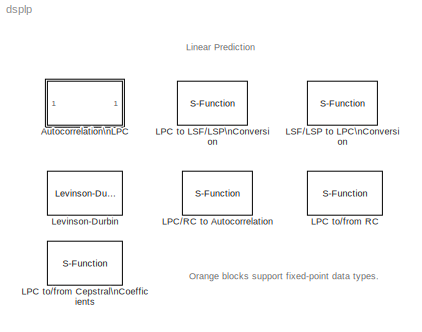
MODEL dsplp
KIND library
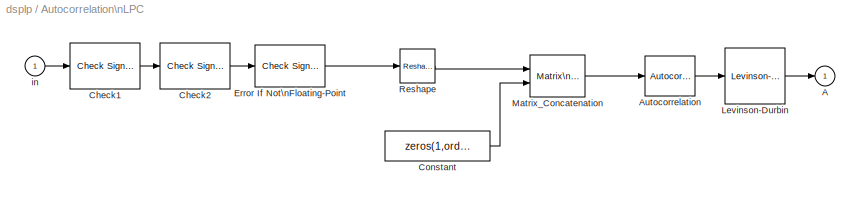
BLOCK [SubSystem] Autocorrelation\nLPC
  MaskCallbackString = ||acf = dspblklpc;|
  MaskDescription = Output the coefficients of an Nth order forward linear predictor such that the sum of the squares of the errors is minimized (using the auto-\ncorrelation LPC method).  The prediction coefficients are given in A (polynomial coefficients) and/or K (reflection coefficients).  The prediction error power is given in the optional P output.
  MaskDisplay = disp('Autocorr\\nLPC')
  MaskEnableString = on,on,on,on
  MaskHelp = web(dspbhelp);
  MaskIconFrame = on
  MaskIconOpaque = off
  MaskIconRotate = none
  MaskIconUnits = autoscale
  MaskInitialization = acf = dspblklpc('init', order);
  MaskPromptString = Output(s):|Output prediction error power (P)|Inherit prediction order from input dimensions|Prediction order (N):
  MaskSelfModifiable = on
  MaskStyleString = popup(A and K|A|K),checkbox,checkbox,edit
  MaskTabNameString = ,,,
  MaskToolTipString = on,on,on,on
  MaskTunableValueString = off,off,off,off
  MaskType = Autocorrelation LPC
  MaskValueString = A|off|off|1
  MaskVarAliasString = ,,,
  MaskVariables = lpcCoeffOutFcn=@1;lpcOutP=@2;inherit_prediction_order=@3;order=@4;
  MaskVisibilityString = on,on,on,on
  Ports = [1, 1]
  TreatAsAtomicUnit = off
BLOCK [Outport] Autocorrelation\nLPC/A
  BusOutputAsStruct = off
  IconDisplay = Port number
  InitialOutput = 0
BLOCK [Reference] Autocorrelation\nLPC/Autocorrelation  REF=dspstat3/Autocorrelation
  AllPositiveLags = off
  DialogController = dspDDGCreate
  DialogControllerArgs = DataTag0
  Ports = [1, 1]
  SourceBlock = dspstat3/Autocorrelation
  SourceType = Autocorrelation
  accumFracLength = 30
  accumMode = Same as product output
  accumWordLength = 40
  additionalParams = off
  allowOverrides = on
  bias = Biased
  domain = Time
  maxlag = acf
  outputFracLength = 15
  outputMode = Same as accumulator
  outputWordLength = 16
  overflowMode = off
  prodOutputFracLength = 30
  prodOutputMode = Same as input
  prodOutputWordLength = 32
  roundingMode = Floor
BLOCK [Reference] Autocorrelation\nLPC/Check1   REF=dspsigattribs/Check Signal\nAttributes
  Complexity = Ignore
  DatatypeCheckMethod = Ignore
  DatatypeGeneral = Boolean
  Dimensions = Vector (1-D or 2-D) or scalar
  DimsCheckMethod = Is...
  DtypeFixedSpecific = Any fixed-point
  DtypeFloatSpecific = Any floating-point
  DtypeIntSpecific = Any integer
  Frame = Ignore
  Ports = [1, 1]
  SampleMode = Ignore
  ShowPortLabels = on
  SigAttribCheckMethod = Does not match attributes exactly
  SourceBlock = dspsigattribs/Check Signal\nAttributes
  SourceType = Check Signal Attributes
BLOCK [Reference] Autocorrelation\nLPC/Check2  REF=dspsigattribs/Check Signal\nAttributes
  Complexity = Ignore
  DatatypeCheckMethod = Ignore
  DatatypeGeneral = Boolean
  Dimensions = Row vector (2-D)
  DimsCheckMethod = Is...
  DtypeFixedSpecific = Any fixed-point
  DtypeFloatSpecific = Any floating-point
  DtypeIntSpecific = Any integer
  Frame = Frame-based
  Ports = [1, 1]
  SampleMode = Ignore
  ShowPortLabels = on
  SigAttribCheckMethod = Matches attributes exactly
  SourceBlock = dspsigattribs/Check Signal\nAttributes
  SourceType = Check Signal Attributes
BLOCK [Constant] Autocorrelation\nLPC/Constant
  OutDataTypeMode = Inherit via back propagation
  Value = zeros(1,order)'
BLOCK [Reference] Autocorrelation\nLPC/Error If Not\nFloating-Point  REF=dspsigattribs/Check Signal\nAttributes
  Complexity = Ignore
  DatatypeCheckMethod = Is...
  DatatypeGeneral = Floating-point
  Dimensions = 1-D
  DimsCheckMethod = Ignore
  DtypeFixedSpecific = Any fixed-point
  DtypeFloatSpecific = Any floating-point
  DtypeIntSpecific = Any integer
  Frame = Ignore
  Ports = [1, 1]
  SampleMode = Ignore
  ShowPortLabels = on
  SigAttribCheckMethod = Does not match attributes exactly
  SourceBlock = dspsigattribs/Check Signal\nAttributes
  SourceType = Check Signal Attributes
BLOCK [Reference] Autocorrelation\nLPC/Levinson-Durbin  REF=dspsolvers/Levinson-Durbin
  Ports = [1, 1]
  SourceBlock = dspsolvers/Levinson-Durbin
  SourceType = Levinson-Durbin
  accumFracLength = 30
  accumMode = User-defined
  accumWordLength = 32
  additionalParams = off
  allowOverrides = off
  coeffOutFcn = A
  firstCoeffFracLength = 15
  firstCoeffMode = Binary point scaling
  firstCoeffWordLength = 16
  outP = off
  outputFracLength = 15
  outputMode = Same as input
  outputWordLength = 16
  overflowMode = off
  prodOutputFracLength = 30
  prodOutputMode = User-defined
  prodOutputWordLength = 32
  roundingMode = Floor
  secondCoeffFracLength = 15
  secondCoeffMode = Binary point scaling
  secondCoeffWordLength = 16
  zeroInpHandling = on
BLOCK [Reference] Autocorrelation\nLPC/Matrix_Concatenation  REF=simulink/Math\nOperations/Matrix\nConcatenation
  Ports = [2, 1]
  SourceBlock = simulink/Math\nOperations/Matrix\nConcatenation
  SourceType = Matrix Concatenation
  catMethod = Vertical
  numInports = 2
BLOCK [Reference] Autocorrelation\nLPC/Reshape  REF=simulink/Math\nOperations/Reshape
  OutputDimensionality = Column vector
  OutputDimensions = [1,1]
  Ports = [1, 1]
  SourceBlock = simulink/Math\nOperations/Reshape
  SourceType = Reshape
BLOCK [Inport] Autocorrelation\nLPC/in
  IconDisplay = Port number
BLOCK [S-Function] LPC to LSF//LSP\nConversion
  FunctionName = sdsppoly2lsp
  MaskCallbackString = ||||dspblkpoly2lsp|dspblkpoly2lsp||
  MaskDescription = Convert linear prediction coefficients (LPCs) to line spectral pairs (LSPs) or line spectral frequencies (LSFs).  An optional output indicates the validity of the current output. Outputs can be invalid due to unstable inputs, or failure to find all LSF/LSPs.\n\nThe first input coefficient must be 1.  If it is not, the block normalizes the input by default, and optionally gives a warning.
  MaskDisplay = port_label('input',si(1).port, si(1).txt);\nport_label('output',so(1).port, so(1).txt);\nport_label('output',so(2).port, so(2).txt);\n
  MaskEnableString = on,on,on,on,on,off,off,on
  MaskHelp = web(dspbhelp);\n
  MaskIconFrame = on
  MaskIconOpaque = on
  MaskIconRotate = none
  MaskIconUnits = autoscale
  MaskInitialization = [si,so] = dspblkpoly2lsp('icon', RootStatus);\ndisp([ ])
  MaskPromptString = Output:|Root finding coarse grid points:|Root finding bisection refinement:|Show output validity status|If current output is invalid, overwrite with previous output|When first output is invalid, overwrite with user-defined values|User-defined LSF/LSP values for overwriting invalid first output:|If first input value is not 1:
  MaskSelfModifiable = on
  MaskStyleString = popup(LSP in range (-1 1)|LSF normalized in range (0 0.5)|LSF in range (0 pi)),edit,edit,checkbox,checkbox,checkbox,edit,popup(Ignore|Normalize|Normalize and warn|Error)
  MaskTabNameString = ,,,,,,,
  MaskToolTipString = on,on,on,on,on,on,on,on
  MaskTunableValueString = off,on,on,off,off,off,off,off
  MaskType = LPC to LSF/LSP Conversion
  MaskValueString = LSP in range (-1 1)|64|4|off|off|off||Ignore
  MaskVarAliasString = ,,,,,,,
  MaskVariables = output=@1;NSteps=@2;NBisects=@3;RootStatus=@4;correction=@5;lastLSP=@6;lspvector=@7;error=@8;
  MaskVisibilityString = on,on,on,on,on,on,on,on
  Parameters = output,NSteps, NBisects, RootStatus,correction,lastLSP,lspvector,error
  Ports = [1, 1]
BLOCK [S-Function] LPC to//from Cepstral\nCoefficients 
  AncestorBlock = dsplp/LPC to//from RC
  FunctionName = sdsplpc2cc
  MaskCallbackString = dspblklpc2cc|||dspblklpc2cc||
  MaskDescription = Converts linear prediction coefficients (LPCs) to/from cepstral coefficients (CCs).\n\nWhen converting from LPCs to CCs, you can assume the prediction error power is 1, or specify a different value using input port P. The size of the output vector of cepstral coefficients can be the same length as the input LPC vector, or you can define a nonzero length. The first input coefficient must be 1. If i...<+218ch>
  MaskDisplay = disp(icontxt)\nport_label('input',si(1).port, si(1).txt);\nport_label('input',si(2).port, si(2).txt);\nport_label('output',so(1).port, so(1).txt);\nport_label('output',so(2).port, so(2).txt);\n\n
  MaskEnableString = on,on,on,on,on,on
  MaskHelp = web(dspbhelp);
  MaskIconFrame = on
  MaskIconOpaque = on
  MaskIconRotate = none
  MaskIconUnits = autoscale
  MaskInitialization = [si,so,icontxt] = dspblklpc2cc('icon');\n
  MaskPromptString = Type of conversion:|Specify P:|Output P|Output size same as input size|Length of output cepstral coefficient vector:|If first input value is not 1:
  MaskSelfModifiable = on
  MaskStyleString = popup(LPCs to cepstral coefficients|Cepstral coefficients to LPCs),popup(assume P equals 1|via input port),checkbox,checkbox,edit,popup(Replace it with 1|Normalize|Normalize and warn|Error)
  MaskTabNameString = ,,,,,
  MaskToolTipString = on,on,on,on,on,on
  MaskTunableValueString = off,off,off,off,off,off
  MaskType = LPC to/from Cepstral Coefficients
  MaskValueString = LPCs to Cepstral coefficients|assume P equals 1|off|off|10|Replace it with 1
  MaskVarAliasString = ,,,,,
  MaskVariables = conversion=@1;enerpp=@2;outpower=@3;sizecb=@4;nceps=@5;error=@6;
  MaskVisibilityString = on,on,off,on,on,on
  Parameters = conversion, enerpp,outpower, sizecb, nceps, error
  Ports = [1, 1]
BLOCK [S-Function] LPC to//from RC
  FunctionName = sdsprc2lpc
  MaskCallbackString = dspblkrc2lpc|||
  MaskDescription = Converts Linear Prediction polynomial coefficients (A) to/from Reflection coefficients (K). The normalized prediction error power of the linear prediciton filter is given in the optional P output. The stability of the prediction coefficients is given in the optional S output. \nIn the LPC to RC conversion, the first input coefficient must be 1. If it is not, you can optionally replace it with 1, o...<+80ch>
  MaskDisplay = disp(icontxt)\nport_label('input',si(1).port, si(1).txt);\nport_label('output',so(1).port, so(1).txt);\nport_label('output',so(2).port, so(2).txt);\nport_label('output',so(3).port, so(3).txt);\n
  MaskEnableString = on,on,on,on
  MaskHelp = web(dspbhelp);
  MaskIconFrame = on
  MaskIconOpaque = on
  MaskIconRotate = none
  MaskIconUnits = autoscale
  MaskInitialization = [si,so,icontxt] = dspblkrc2lpc('icon', perr, stability);\n
  MaskPromptString = Type of conversion|Output normalized prediction error power|Output LPC filter stability|If first input value is not 1:
  MaskSelfModifiable = on
  MaskStyleString = popup(RC to LPC|LPC to RC),checkbox,checkbox,popup(Replace it with 1|Normalize|Normalize and warn|Error)
  MaskTabNameString = ,,,
  MaskToolTipString = on,on,on,on
  MaskTunableValueString = off,off,off,off
  MaskType = LPC to/from RC
  MaskValueString = RC to LPC|on|off|Replace it with 1
  MaskVarAliasString = ,,,
  MaskVariables = conversion=@1;perr=@2;stability=@3;error=@4;
  MaskVisibilityString = on,on,on,off
  Parameters = conversion, perr, stability, error
  Ports = [1, 2]
BLOCK [S-Function] LPC//RC to Autocorrelation
  FunctionName = sdsprc2ac
  MaskCallbackString = dspblkrc2ac||
  MaskDescription = Converts Linear Prediction Coefficients (A) or Reflection Coefficients (K) into Autocorrelation coefficients (AC). We can have an optional prediction error power (P) input port which expects a scalar value, in the absence of which P is assumed to be 1.\n\nIn the LPC to Autocorrelation coefficient conversion, the first input coefficient is expected to be 1. If it is not, user can select one of 4 op...<+145ch>
  MaskDisplay = disp(icontxt)\nport_label('input',si(1).port, si(1).txt);\nport_label('input',si(2).port, si(2).txt);\nport_label('output',so(1).port, so(1).txt);\n
  MaskEnableString = on,on,on
  MaskHelp = web(dspbhelp);
  MaskIconFrame = on
  MaskIconOpaque = on
  MaskIconRotate = none
  MaskIconUnits = autoscale
  MaskInitialization = [si,so, icontxt] = dspblkrc2ac('icon',perr_spec);\ndisp([ ])
  MaskPromptString = Type of conversion|Specify P:|If first input value is not 1:
  MaskSelfModifiable = on
  MaskStyleString = popup(LPC to autocorrelation|RC to autocorrelation),popup(Assume P = 1|Via input port),popup(Replace it with 1|Normalize|Normalize and warn|Error)
  MaskTabNameString = ,,
  MaskToolTipString = on,on,on
  MaskTunableValueString = off,off,off
  MaskType = LPC/RC to Autocorrelation
  MaskValueString = LPC to autocorrelation|Assume P = 1|Replace it with 1
  MaskVarAliasString = ,,
  MaskVariables = conversion=@1;perr_spec=@2;error=@3;
  MaskVisibilityString = on,on,on
  Parameters = conversion, perr_spec, error
  Ports = [1, 1]
BLOCK [S-Function] LSF//LSP to LPC\nConversion
  FunctionName = sdsplsp2poly
  MaskDescription = Convert line spectral frequencies (LSFs) or line spectral pairs (LSPs) to linear prediction coefficients (LPCs).  The LSF inputs can be in the range (0 pi), or normalized to be in the range (0 0.5).
  MaskDisplay = port_label('input',si(1).port, si(1).txt);\nport_label('output',so(1).port, so(1).txt);
  MaskEnableString = on
  MaskHelp = web(dspbhelp);\n
  MaskIconFrame = on
  MaskIconOpaque = on
  MaskIconRotate = none
  MaskIconUnits = autoscale
  MaskInitialization = [si,so] = dspblklsp2poly('icon');
  MaskPromptString = Input:
  MaskStyleString = popup(LSP in range (-1 1)|LSF normalized in range (0 0.5)|LSF in range (0 pi))
  MaskToolTipString = on
  MaskTunableValueString = off
  MaskType = LSF/LSP to LPC Conversion
  MaskValueString = LSP in range (-1 1)
  MaskVariables = input=@1;
  MaskVisibilityString = on
  Parameters = input
  Ports = [1, 1]
BLOCK [Reference] Levinson-Durbin  REF=dspsolvers/Levinson-Durbin
  Ports = [1, 1]
  SourceBlock = dspsolvers/Levinson-Durbin
  SourceType = Levinson-Durbin
  accumFracLength = 30
  accumMode = User-defined
  accumWordLength = 32
  additionalParams = off
  allowOverrides = off
  coeffOutFcn = K
  firstCoeffFracLength = 15
  firstCoeffMode = Binary point scaling
  firstCoeffWordLength = 16
  outP = off
  outputFracLength = 15
  outputMode = Same as input
  outputWordLength = 16
  overflowMode = off
  prodOutputFracLength = 30
  prodOutputMode = User-defined
  prodOutputWordLength = 32
  roundingMode = Floor
  secondCoeffFracLength = 15
  secondCoeffMode = Binary point scaling
  secondCoeffWordLength = 16
  zeroInpHandling = on
ANNOTATION (root): Linear Prediction
ANNOTATION (root): Orange blocks support fixed-point data types.
LINE Autocorrelation\nLPC/Autocorrelation:1 -> Autocorrelation\nLPC/Levinson-Durbin:1
LINE Autocorrelation\nLPC/Check1 :1 -> Autocorrelation\nLPC/Check2:1
LINE Autocorrelation\nLPC/Check2:1 -> Autocorrelation\nLPC/Error If Not\nFloating-Point:1
LINE Autocorrelation\nLPC/Constant:1 -> Autocorrelation\nLPC/Matrix_Concatenation:2
LINE Autocorrelation\nLPC/Error If Not\nFloating-Point:1 -> Autocorrelation\nLPC/Reshape:1
LINE Autocorrelation\nLPC/Levinson-Durbin:1 -> Autocorrelation\nLPC/A:1
LINE Autocorrelation\nLPC/Matrix_Concatenation:1 -> Autocorrelation\nLPC/Autocorrelation:1
LINE Autocorrelation\nLPC/Reshape:1 -> Autocorrelation\nLPC/Matrix_Concatenation:1
LINE Autocorrelation\nLPC/in:1 -> Autocorrelation\nLPC/Check1 :1
